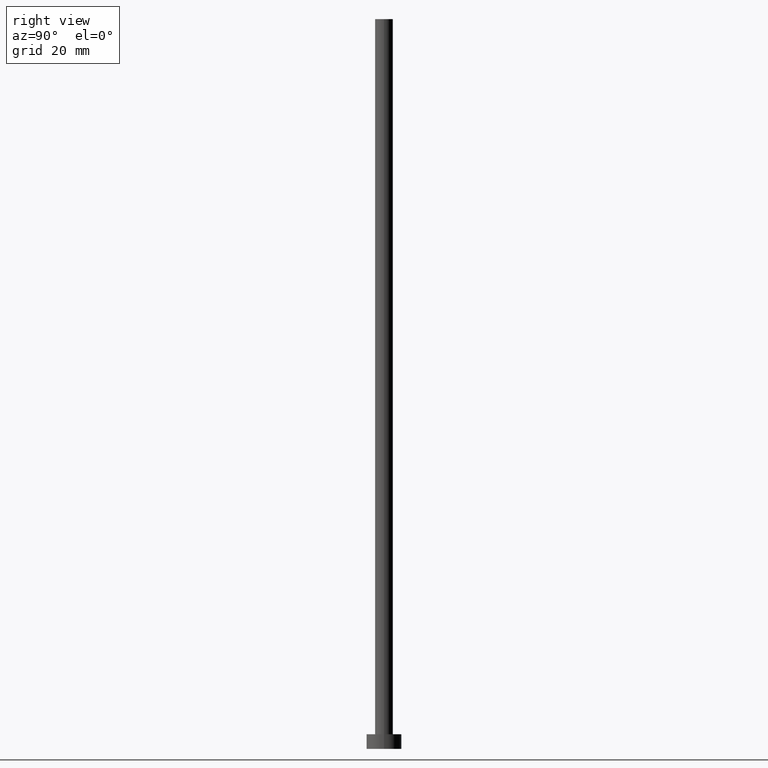
[diagram: clean part render]
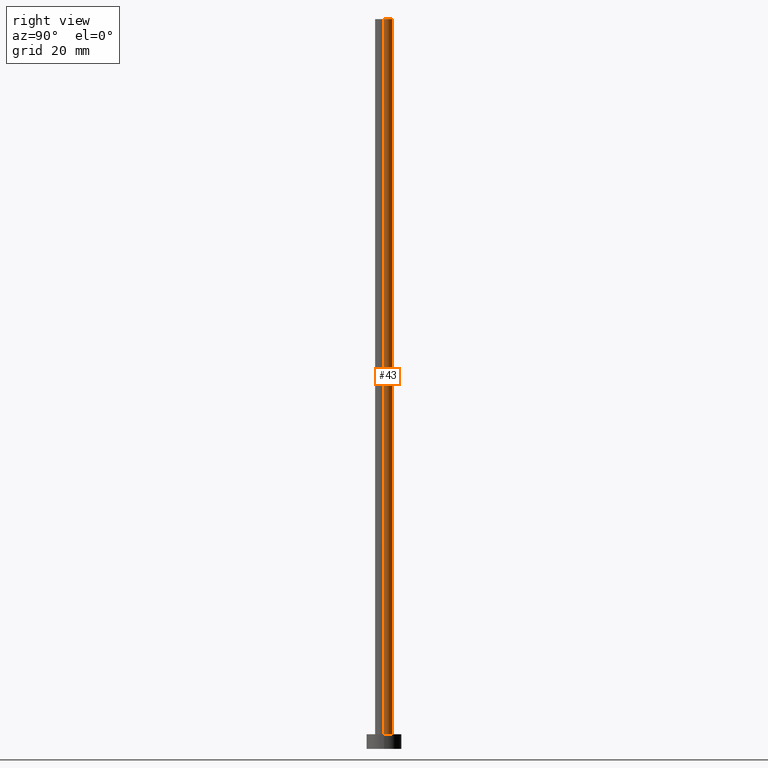
[diagram: same view with one face highlighted and labeled with its STEP entity id]
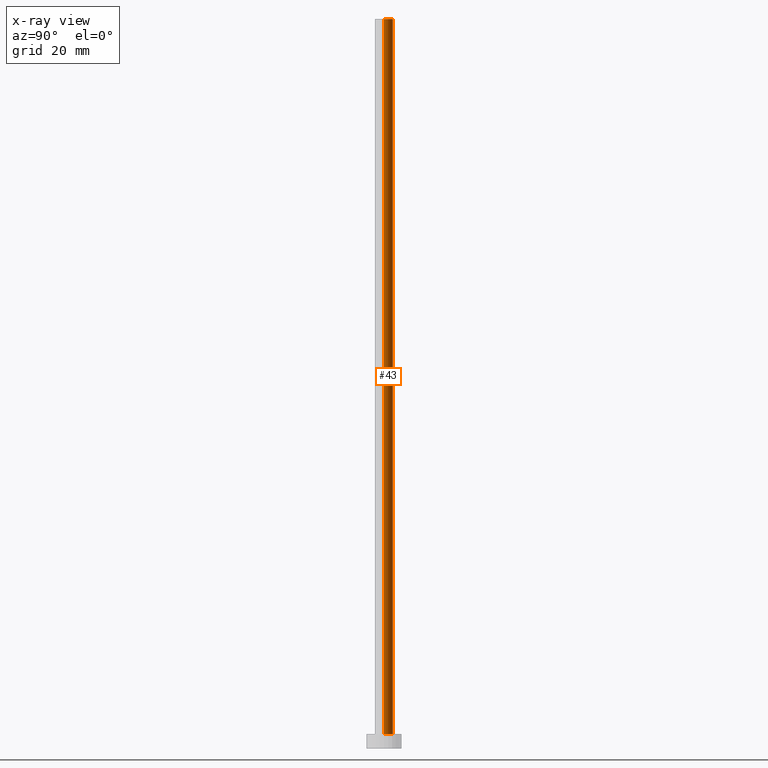
[diagram: x-ray of the same camera — body ghosted, the highlighted face saturated]
A machine part, right view. The second image highlights one B-rep face of the part: STEP entity #43.
The next image is the same camera in x-ray: the body ghosted, the highlighted face saturated — about 0% of this face is hidden behind the body in this view.
In plain terms, the highlighted cylindrical surface (edge-blend (fillet) strip) has radius 3.05 mm, axis along (-0, -0, -1).
Its self-contained STEP definition (entity closure, byte-faithful):
#3 = AXIS2_PLACEMENT_3D ( 'NONE', #33, #232, #251 ) ;
#10 = VERTEX_POINT ( 'NONE', #61 ) ;
#11 = ORIENTED_EDGE ( 'NONE', *, *, #77, .F. ) ;
#27 = CARTESIAN_POINT ( 'NONE',  ( 3.049999999999999822, 3.735172737399427146E-16, 250.0000000000000000 ) ) ;
#31 = DIRECTION ( 'NONE',  ( 0.000000000000000000, 0.000000000000000000, 1.000000000000000000 ) ) ;
#32 = CARTESIAN_POINT ( 'NONE',  ( -3.049999999999999822, 0.000000000000000000, 250.0000000000000000 ) ) ;
#33 = CARTESIAN_POINT ( 'NONE',  ( 0.000000000000000000, 0.000000000000000000, 5.000000000000000000 ) ) ;
#36 = EDGE_CURVE ( 'NONE', #200, #39, #133, .T. ) ;
#39 = VERTEX_POINT ( 'NONE', #167 ) ;
#43 = ADVANCED_FACE ( 'NONE', ( #164 ), #243, .T. ) ;
#49 = LINE ( 'NONE', #189, #109 ) ;
#60 = EDGE_LOOP ( 'NONE', ( #11, #127, #222, #132 ) ) ;
#61 = CARTESIAN_POINT ( 'NONE',  ( -3.049999999999999822, 0.000000000000000000, 5.000000000000000000 ) ) ;
#65 = DIRECTION ( 'NONE',  ( -0.000000000000000000, -0.000000000000000000, -1.000000000000000000 ) ) ;
#71 = CARTESIAN_POINT ( 'NONE',  ( 3.049999999999999822, 3.735172737399427146E-16, 250.0000000000000000 ) ) ;
#77 = EDGE_CURVE ( 'NONE', #200, #150, #106, .T. ) ;
#83 = AXIS2_PLACEMENT_3D ( 'NONE', #244, #149, #110 ) ;
#86 = CARTESIAN_POINT ( 'NONE',  ( 0.000000000000000000, 0.000000000000000000, 250.0000000000000000 ) ) ;
#89 = VECTOR ( 'NONE', #65, 1000.000000000000000 ) ;
#106 = CIRCLE ( 'NONE', #179, 3.049999999999999822 ) ;
#109 = VECTOR ( 'NONE', #114, 1000.000000000000000 ) ;
#110 = DIRECTION ( 'NONE',  ( -1.000000000000000000, 0.000000000000000000, 0.000000000000000000 ) ) ;
#114 = DIRECTION ( 'NONE',  ( -0.000000000000000000, -0.000000000000000000, -1.000000000000000000 ) ) ;
#127 = ORIENTED_EDGE ( 'NONE', *, *, #36, .T. ) ;
#132 = ORIENTED_EDGE ( 'NONE', *, *, #180, .F. ) ;
#133 = LINE ( 'NONE', #27, #89 ) ;
#147 = DIRECTION ( 'NONE',  ( 1.000000000000000000, 0.000000000000000000, 0.000000000000000000 ) ) ;
#149 = DIRECTION ( 'NONE',  ( -0.000000000000000000, -0.000000000000000000, -1.000000000000000000 ) ) ;
#150 = VERTEX_POINT ( 'NONE', #32 ) ;
#164 = FACE_OUTER_BOUND ( 'NONE', #60, .T. ) ;
#167 = CARTESIAN_POINT ( 'NONE',  ( 3.049999999999999822, 3.735172737399427146E-16, 5.000000000000000000 ) ) ;
#179 = AXIS2_PLACEMENT_3D ( 'NONE', #86, #31, #147 ) ;
#180 = EDGE_CURVE ( 'NONE', #150, #10, #49, .T. ) ;
#189 = CARTESIAN_POINT ( 'NONE',  ( -3.049999999999999822, 0.000000000000000000, 250.0000000000000000 ) ) ;
#200 = VERTEX_POINT ( 'NONE', #71 ) ;
#207 = EDGE_CURVE ( 'NONE', #39, #10, #233, .T. ) ;
#222 = ORIENTED_EDGE ( 'NONE', *, *, #207, .T. ) ;
#232 = DIRECTION ( 'NONE',  ( 0.000000000000000000, 0.000000000000000000, 1.000000000000000000 ) ) ;
#233 = CIRCLE ( 'NONE', #3, 3.049999999999999822 ) ;
#243 = CYLINDRICAL_SURFACE ( 'NONE', #83, 3.049999999999999822 ) ;
#244 = CARTESIAN_POINT ( 'NONE',  ( 0.000000000000000000, 0.000000000000000000, 250.0000000000000000 ) ) ;
#251 = DIRECTION ( 'NONE',  ( 1.000000000000000000, 0.000000000000000000, 0.000000000000000000 ) ) ;